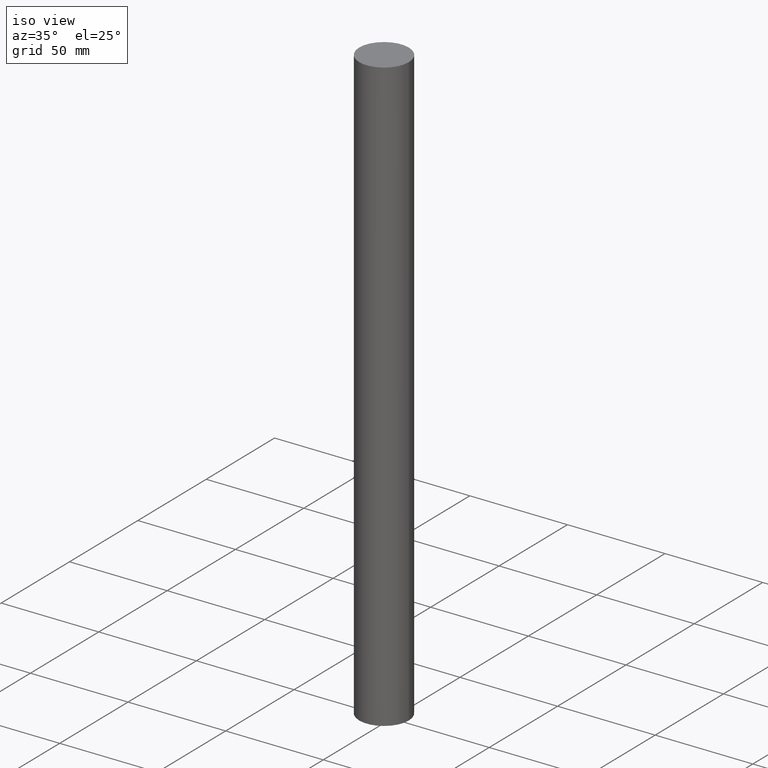
[diagram: clean part render]
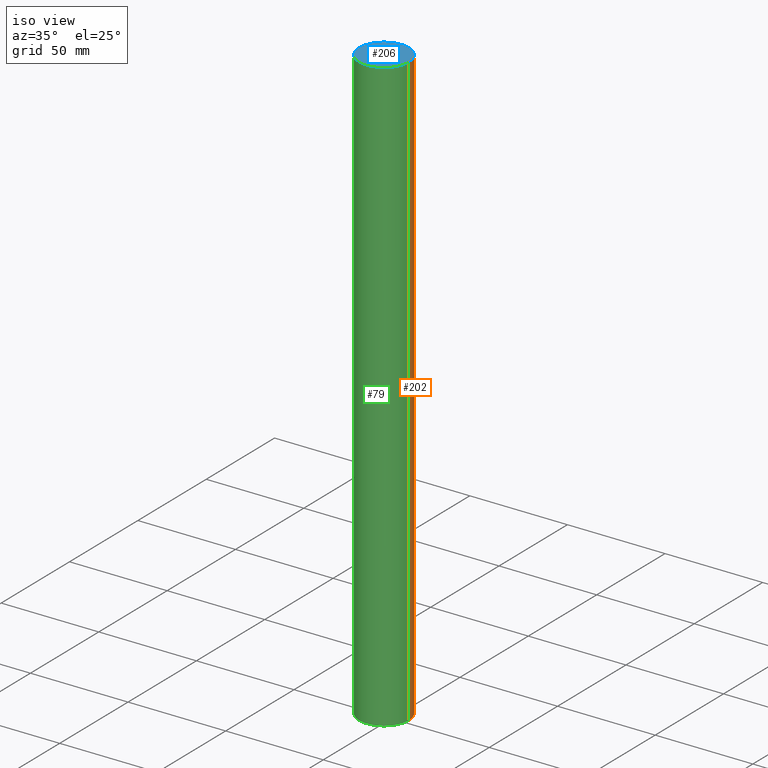
[diagram: same view with three faces highlighted in distinct colors, each labeled with its STEP entity id]
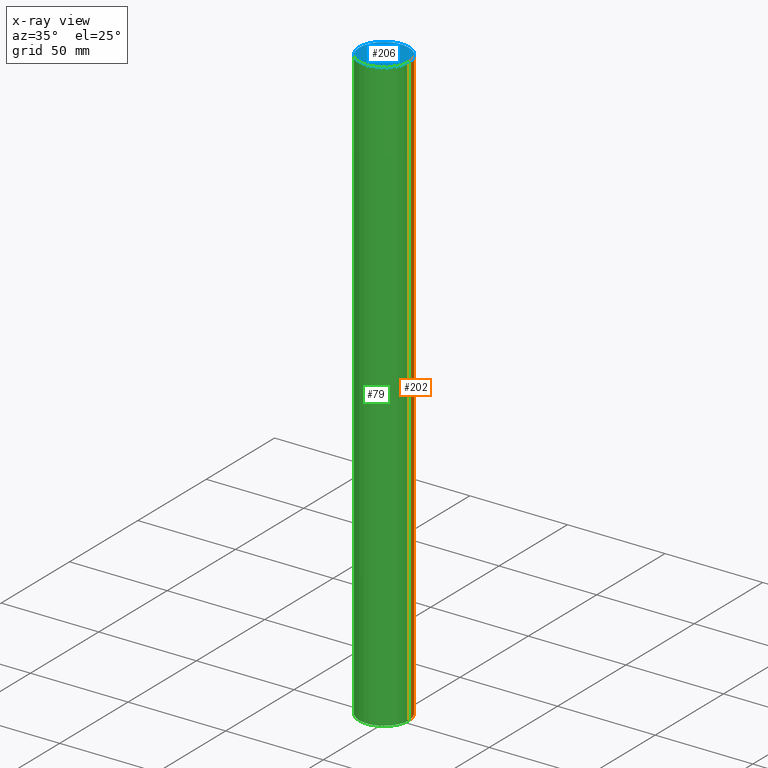
[diagram: x-ray of the same camera — body ghosted, the three highlighted faces saturated]
A machine part, iso view with three faces highlighted in distinct colors.
The next image is the same camera in x-ray (body ghosted, the three faces saturated) — at least one of them is partly hidden behind the body in this view.
Their STEP definitions:

[orange] entity #202 — the highlighted cylindrical surface (edge-blend (fillet) strip) has radius 12.7 mm, axis along (0, 0, 1).
#1 = VERTEX_POINT ( 'NONE', #84 ) ;
#8 = EDGE_CURVE ( 'NONE', #116, #52, #244, .T. ) ;
#15 = ORIENTED_EDGE ( 'NONE', *, *, #71, .F. ) ;
#19 = CARTESIAN_POINT ( 'NONE',  ( 0.000000000000000000, 1.750000000000000000, 0.000000000000000000 ) ) ;
#23 = VECTOR ( 'NONE', #179, 39.37007874015748143 ) ;
#34 = LINE ( 'NONE', #99, #87 ) ;
#36 = CARTESIAN_POINT ( 'NONE',  ( -0.5000000000000000000, 1.750000000000000000, 0.000000000000000000 ) ) ;
#40 = CARTESIAN_POINT ( 'NONE',  ( 0.5000000000000000000, 1.750000000000000000, -11.99999999999999822 ) ) ;
#50 = DIRECTION ( 'NONE',  ( 1.000000000000000000, 0.000000000000000000, 0.000000000000000000 ) ) ;
#51 = CARTESIAN_POINT ( 'NONE',  ( 0.000000000000000000, 1.750000000000000000, -11.99999999999999822 ) ) ;
#52 = VERTEX_POINT ( 'NONE', #36 ) ;
#69 = DIRECTION ( 'NONE',  ( 0.000000000000000000, 0.000000000000000000, 1.000000000000000000 ) ) ;
#71 = EDGE_CURVE ( 'NONE', #185, #116, #34, .T. ) ;
#73 = AXIS2_PLACEMENT_3D ( 'NONE', #115, #69, #50 ) ;
#84 = CARTESIAN_POINT ( 'NONE',  ( -0.5000000000000000000, 1.750000000000000000, -11.99999999999999822 ) ) ;
#87 = VECTOR ( 'NONE', #268, 39.37007874015748143 ) ;
#91 = CARTESIAN_POINT ( 'NONE',  ( -0.5000000000000000000, 1.750000000000000000, -11.99999999999999822 ) ) ;
#93 = CYLINDRICAL_SURFACE ( 'NONE', #73, 0.5000000000000000000 ) ;
#99 = CARTESIAN_POINT ( 'NONE',  ( 0.5000000000000000000, 1.750000000000000000, -11.99999999999999822 ) ) ;
#107 = LINE ( 'NONE', #91, #23 ) ;
#115 = CARTESIAN_POINT ( 'NONE',  ( 0.000000000000000000, 1.750000000000000000, -11.99999999999999822 ) ) ;
#116 = VERTEX_POINT ( 'NONE', #236 ) ;
#129 = FACE_OUTER_BOUND ( 'NONE', #247, .T. ) ;
#142 = DIRECTION ( 'NONE',  ( 1.000000000000000000, 0.000000000000000000, 0.000000000000000000 ) ) ;
#160 = ORIENTED_EDGE ( 'NONE', *, *, #170, .T. ) ;
#167 = ORIENTED_EDGE ( 'NONE', *, *, #8, .F. ) ;
#170 = EDGE_CURVE ( 'NONE', #1, #52, #107, .T. ) ;
#175 = DIRECTION ( 'NONE',  ( 0.000000000000000000, 0.000000000000000000, 1.000000000000000000 ) ) ;
#179 = DIRECTION ( 'NONE',  ( 0.000000000000000000, 0.000000000000000000, 1.000000000000000000 ) ) ;
#185 = VERTEX_POINT ( 'NONE', #40 ) ;
#202 = ADVANCED_FACE ( 'NONE', ( #129 ), #93, .T. ) ;
#207 = DIRECTION ( 'NONE',  ( 0.000000000000000000, 0.000000000000000000, 1.000000000000000000 ) ) ;
#211 = AXIS2_PLACEMENT_3D ( 'NONE', #19, #207, #142 ) ;
#218 = CIRCLE ( 'NONE', #241, 0.5000000000000000000 ) ;
#228 = DIRECTION ( 'NONE',  ( 1.000000000000000000, 0.000000000000000000, 0.000000000000000000 ) ) ;
#236 = CARTESIAN_POINT ( 'NONE',  ( 0.5000000000000000000, 1.750000000000000000, 0.000000000000000000 ) ) ;
#241 = AXIS2_PLACEMENT_3D ( 'NONE', #51, #175, #228 ) ;
#244 = CIRCLE ( 'NONE', #211, 0.5000000000000000000 ) ;
#247 = EDGE_LOOP ( 'NONE', ( #266, #160, #167, #15 ) ) ;
#258 = EDGE_CURVE ( 'NONE', #185, #1, #218, .T. ) ;
#266 = ORIENTED_EDGE ( 'NONE', *, *, #258, .T. ) ;
#268 = DIRECTION ( 'NONE',  ( 0.000000000000000000, 0.000000000000000000, 1.000000000000000000 ) ) ;

[blue] entity #206 — the highlighted planar face has unit normal (0, 0, 1).
#8 = EDGE_CURVE ( 'NONE', #116, #52, #244, .T. ) ;
#11 = PLANE ( 'NONE',  #274 ) ;
#19 = CARTESIAN_POINT ( 'NONE',  ( 0.000000000000000000, 1.750000000000000000, 0.000000000000000000 ) ) ;
#32 = CIRCLE ( 'NONE', #194, 0.5000000000000000000 ) ;
#36 = CARTESIAN_POINT ( 'NONE',  ( -0.5000000000000000000, 1.750000000000000000, 0.000000000000000000 ) ) ;
#47 = DIRECTION ( 'NONE',  ( 1.000000000000000000, 0.000000000000000000, -0.000000000000000000 ) ) ;
#52 = VERTEX_POINT ( 'NONE', #36 ) ;
#66 = CARTESIAN_POINT ( 'NONE',  ( 0.000000000000000000, 1.750000000000000000, 0.000000000000000000 ) ) ;
#78 = ORIENTED_EDGE ( 'NONE', *, *, #165, .T. ) ;
#94 = FACE_OUTER_BOUND ( 'NONE', #120, .T. ) ;
#112 = ORIENTED_EDGE ( 'NONE', *, *, #8, .T. ) ;
#116 = VERTEX_POINT ( 'NONE', #236 ) ;
#120 = EDGE_LOOP ( 'NONE', ( #112, #78 ) ) ;
#142 = DIRECTION ( 'NONE',  ( 1.000000000000000000, 0.000000000000000000, 0.000000000000000000 ) ) ;
#164 = CARTESIAN_POINT ( 'NONE',  ( 0.000000000000000000, 1.750000000000000000, 0.000000000000000000 ) ) ;
#165 = EDGE_CURVE ( 'NONE', #52, #116, #32, .T. ) ;
#178 = DIRECTION ( 'NONE',  ( 1.000000000000000000, 0.000000000000000000, 0.000000000000000000 ) ) ;
#184 = DIRECTION ( 'NONE',  ( 0.000000000000000000, 0.000000000000000000, 1.000000000000000000 ) ) ;
#194 = AXIS2_PLACEMENT_3D ( 'NONE', #66, #198, #178 ) ;
#198 = DIRECTION ( 'NONE',  ( 0.000000000000000000, 0.000000000000000000, 1.000000000000000000 ) ) ;
#206 = ADVANCED_FACE ( 'NONE', ( #94 ), #11, .T. ) ;
#207 = DIRECTION ( 'NONE',  ( 0.000000000000000000, 0.000000000000000000, 1.000000000000000000 ) ) ;
#211 = AXIS2_PLACEMENT_3D ( 'NONE', #19, #207, #142 ) ;
#236 = CARTESIAN_POINT ( 'NONE',  ( 0.5000000000000000000, 1.750000000000000000, 0.000000000000000000 ) ) ;
#244 = CIRCLE ( 'NONE', #211, 0.5000000000000000000 ) ;
#274 = AXIS2_PLACEMENT_3D ( 'NONE', #164, #184, #47 ) ;

[green] entity #79 — the highlighted cylindrical surface (edge-blend (fillet) strip) has radius 12.7 mm, axis along (0, 0, 1).
#1 = VERTEX_POINT ( 'NONE', #84 ) ;
#6 = CIRCLE ( 'NONE', #200, 0.5000000000000000000 ) ;
#9 = DIRECTION ( 'NONE',  ( 0.000000000000000000, 0.000000000000000000, 1.000000000000000000 ) ) ;
#23 = VECTOR ( 'NONE', #179, 39.37007874015748143 ) ;
#32 = CIRCLE ( 'NONE', #194, 0.5000000000000000000 ) ;
#34 = LINE ( 'NONE', #99, #87 ) ;
#35 = EDGE_CURVE ( 'NONE', #1, #185, #6, .T. ) ;
#36 = CARTESIAN_POINT ( 'NONE',  ( -0.5000000000000000000, 1.750000000000000000, 0.000000000000000000 ) ) ;
#40 = CARTESIAN_POINT ( 'NONE',  ( 0.5000000000000000000, 1.750000000000000000, -11.99999999999999822 ) ) ;
#52 = VERTEX_POINT ( 'NONE', #36 ) ;
#55 = FACE_OUTER_BOUND ( 'NONE', #140, .T. ) ;
#58 = CARTESIAN_POINT ( 'NONE',  ( 0.000000000000000000, 1.750000000000000000, -11.99999999999999822 ) ) ;
#66 = CARTESIAN_POINT ( 'NONE',  ( 0.000000000000000000, 1.750000000000000000, 0.000000000000000000 ) ) ;
#71 = EDGE_CURVE ( 'NONE', #185, #116, #34, .T. ) ;
#79 = ADVANCED_FACE ( 'NONE', ( #55 ), #212, .T. ) ;
#84 = CARTESIAN_POINT ( 'NONE',  ( -0.5000000000000000000, 1.750000000000000000, -11.99999999999999822 ) ) ;
#87 = VECTOR ( 'NONE', #268, 39.37007874015748143 ) ;
#88 = DIRECTION ( 'NONE',  ( 1.000000000000000000, 0.000000000000000000, 0.000000000000000000 ) ) ;
#91 = CARTESIAN_POINT ( 'NONE',  ( -0.5000000000000000000, 1.750000000000000000, -11.99999999999999822 ) ) ;
#99 = CARTESIAN_POINT ( 'NONE',  ( 0.5000000000000000000, 1.750000000000000000, -11.99999999999999822 ) ) ;
#107 = LINE ( 'NONE', #91, #23 ) ;
#116 = VERTEX_POINT ( 'NONE', #236 ) ;
#125 = CARTESIAN_POINT ( 'NONE',  ( 0.000000000000000000, 1.750000000000000000, -11.99999999999999822 ) ) ;
#140 = EDGE_LOOP ( 'NONE', ( #187, #225, #210, #174 ) ) ;
#143 = AXIS2_PLACEMENT_3D ( 'NONE', #58, #9, #88 ) ;
#165 = EDGE_CURVE ( 'NONE', #52, #116, #32, .T. ) ;
#170 = EDGE_CURVE ( 'NONE', #1, #52, #107, .T. ) ;
#174 = ORIENTED_EDGE ( 'NONE', *, *, #165, .F. ) ;
#178 = DIRECTION ( 'NONE',  ( 1.000000000000000000, 0.000000000000000000, 0.000000000000000000 ) ) ;
#179 = DIRECTION ( 'NONE',  ( 0.000000000000000000, 0.000000000000000000, 1.000000000000000000 ) ) ;
#185 = VERTEX_POINT ( 'NONE', #40 ) ;
#187 = ORIENTED_EDGE ( 'NONE', *, *, #170, .F. ) ;
#190 = DIRECTION ( 'NONE',  ( 1.000000000000000000, 0.000000000000000000, 0.000000000000000000 ) ) ;
#194 = AXIS2_PLACEMENT_3D ( 'NONE', #66, #198, #178 ) ;
#198 = DIRECTION ( 'NONE',  ( 0.000000000000000000, 0.000000000000000000, 1.000000000000000000 ) ) ;
#200 = AXIS2_PLACEMENT_3D ( 'NONE', #125, #252, #190 ) ;
#210 = ORIENTED_EDGE ( 'NONE', *, *, #71, .T. ) ;
#212 = CYLINDRICAL_SURFACE ( 'NONE', #143, 0.5000000000000000000 ) ;
#225 = ORIENTED_EDGE ( 'NONE', *, *, #35, .T. ) ;
#236 = CARTESIAN_POINT ( 'NONE',  ( 0.5000000000000000000, 1.750000000000000000, 0.000000000000000000 ) ) ;
#252 = DIRECTION ( 'NONE',  ( 0.000000000000000000, 0.000000000000000000, 1.000000000000000000 ) ) ;
#268 = DIRECTION ( 'NONE',  ( 0.000000000000000000, 0.000000000000000000, 1.000000000000000000 ) ) ;